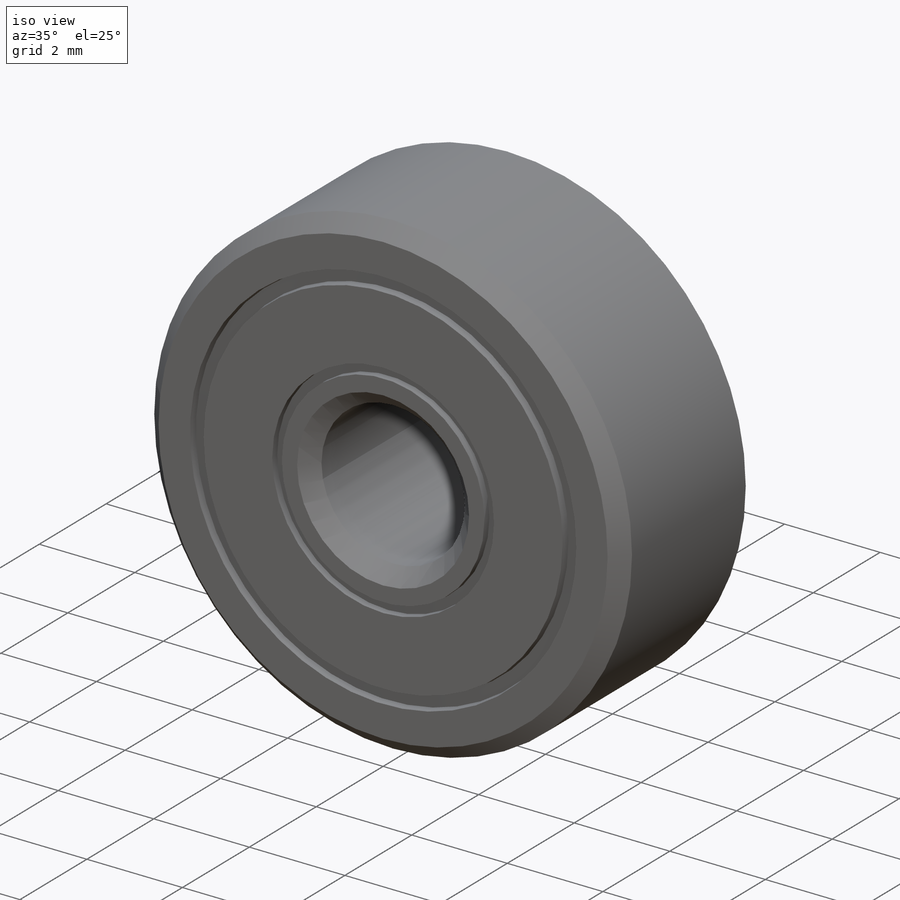
[diagram: iso view]
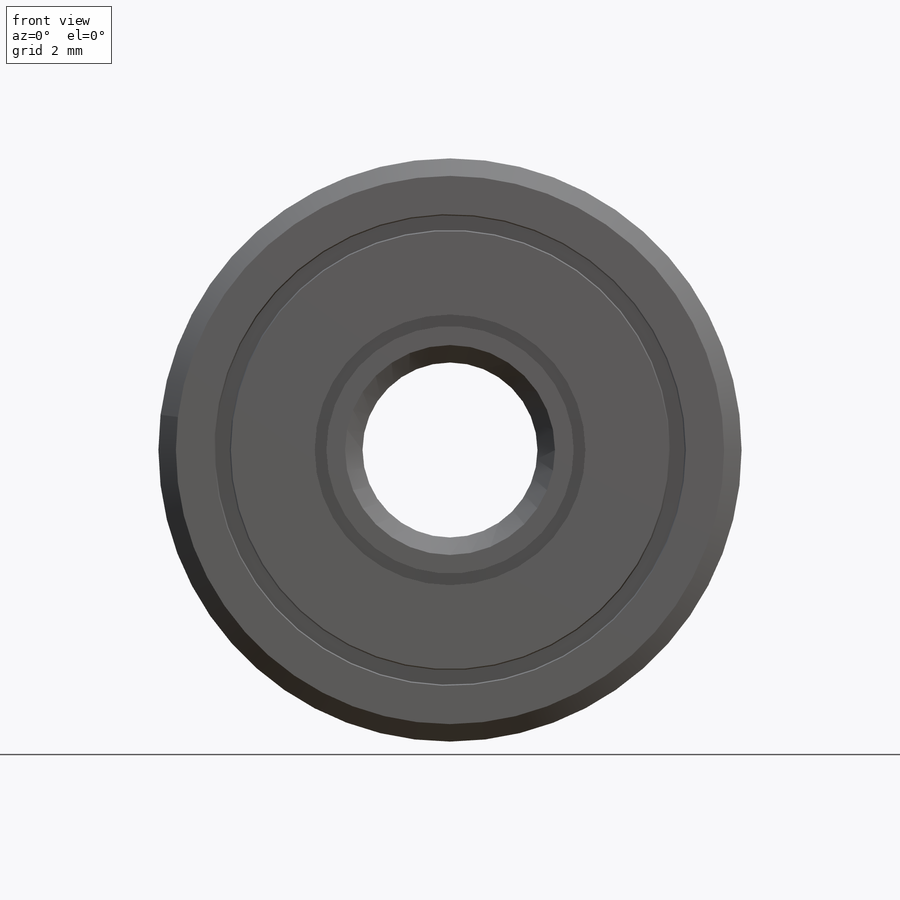
[diagram: front view]
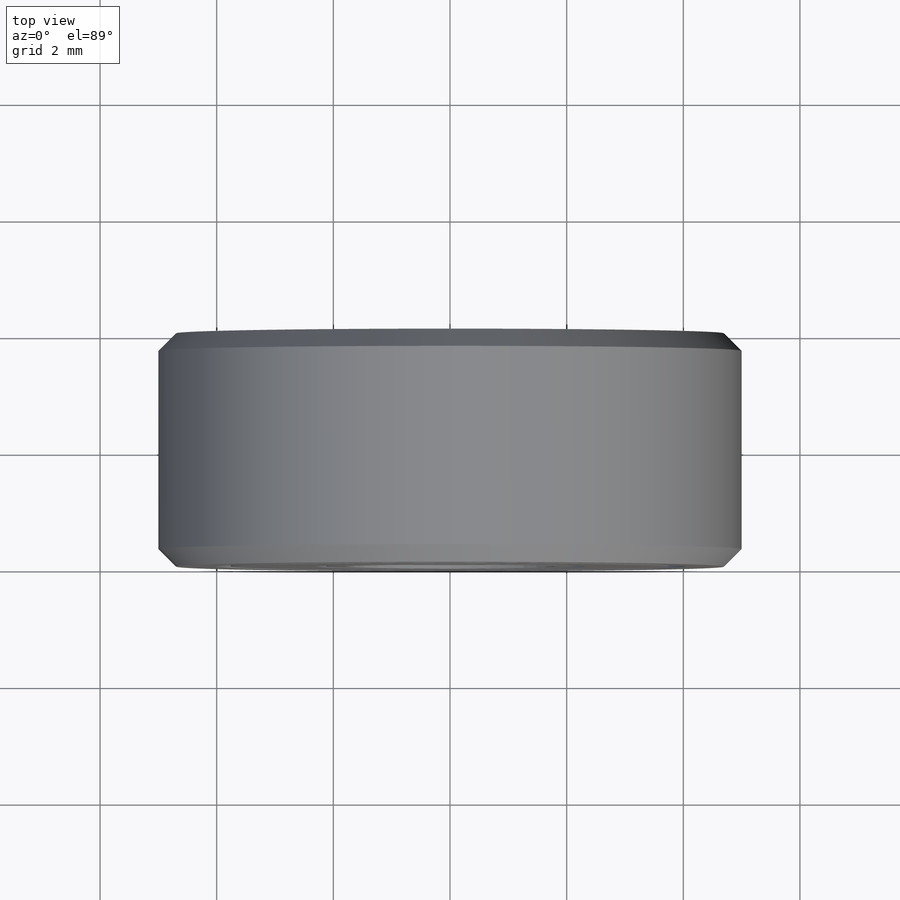
[diagram: top view]
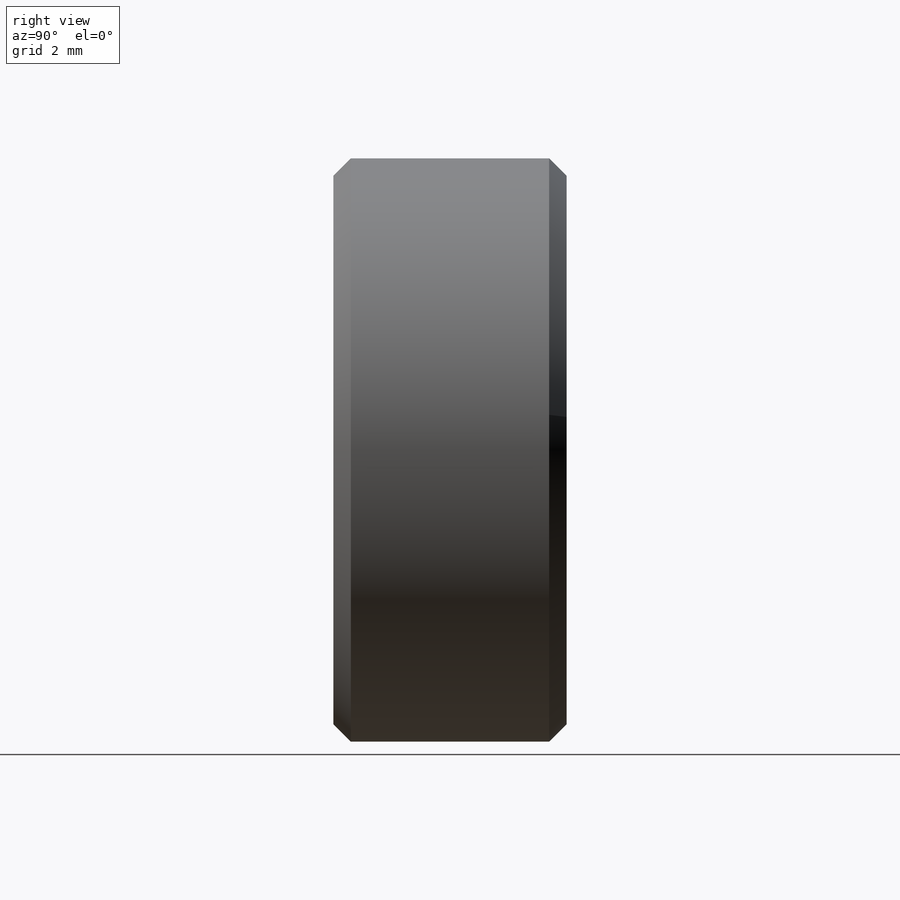
[diagram: right view]
SOLIDWORKS PART (.sldprt)
format: sldprt  version: not decoded by parser v0  size: 236,032 bytes
history: native  units: mm
features: plane x3, sketch x3, material x1, extrude x1, chamfer x1, cut_revolve x1 (+10 scaffold rows collapsed)
feature tree (20):
  scaffold x10  (default folders/planes/origin — collapsed)
  material  "Material <not specified>"
  plane  "Alzado"
  plane  "Planta"
  plane  "Vista lateral"
  sketch  "Croquis1"  dims[D1=3.0mm D2=10.0mm]
  extrude  "Saliente-Extruir1"  Depth=4mm
  chamfer  "Chaflán1"  Distance=0.3mm Angle=45deg
  sketch  "Croquis2"  dims[c1.D1=0.25mm c1.D2=0.5mm c1.D3=2.3mm c1.D4=~2.176678mm c2.D4=90.0deg c3.D4=6.4mm c3.D5=1.0mm c3.D6=0.2mm c3.D3=0.15mm c4.D4=1.0mm c5.D4=90.0deg c6.D4=1.0mm c7.D4=90.0deg c8.D4=1.0mm c9.D4=90.0deg]
  sketch  "Croquis3"
  cut_revolve  "Cortar-Revolución1"  Angle=360deg
decode coverage: 5 of 6 modeling features carry decoded parameters
note: ~ marks probable driven/reference dimensions
note: suppression state not decoded; provenance and decode notes live in map.json
